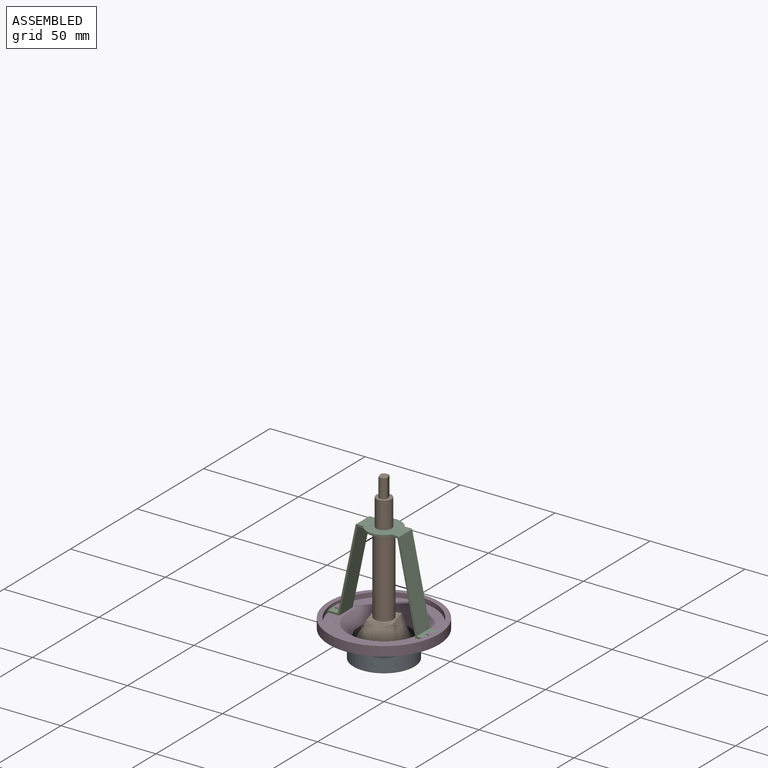
[diagram: assembled view]
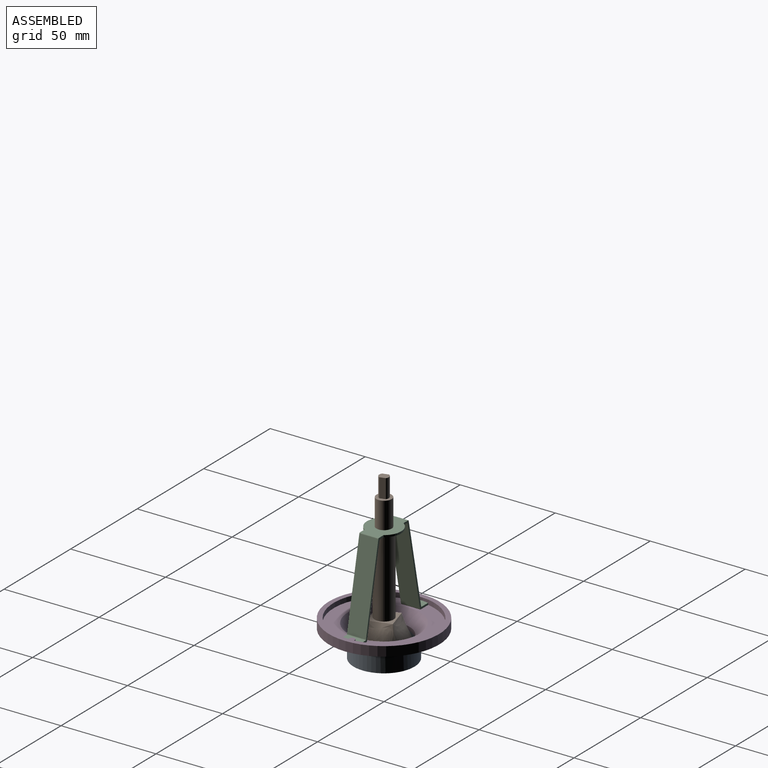
[diagram: assembled view, second angle]
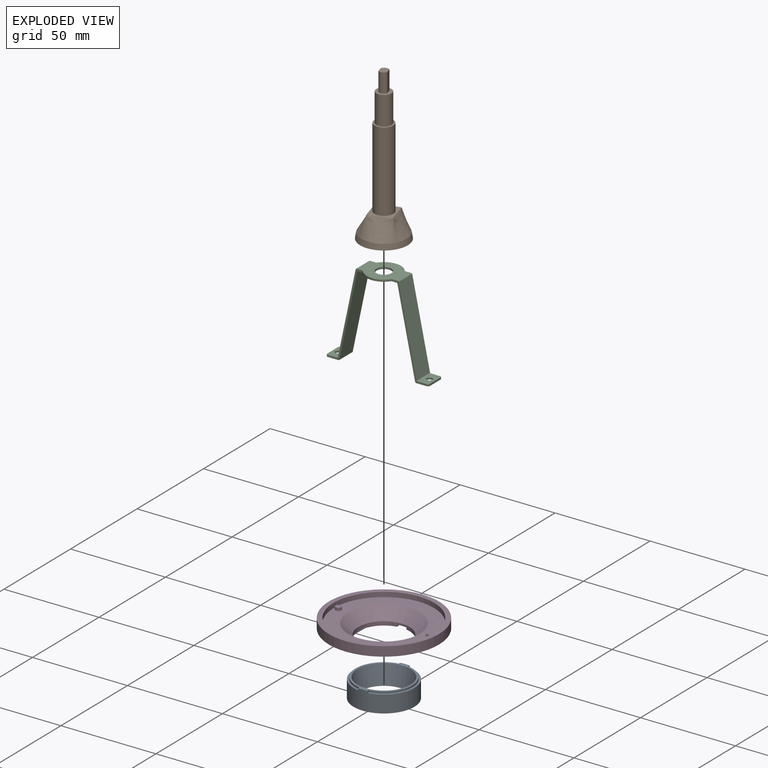
[diagram: exploded view]
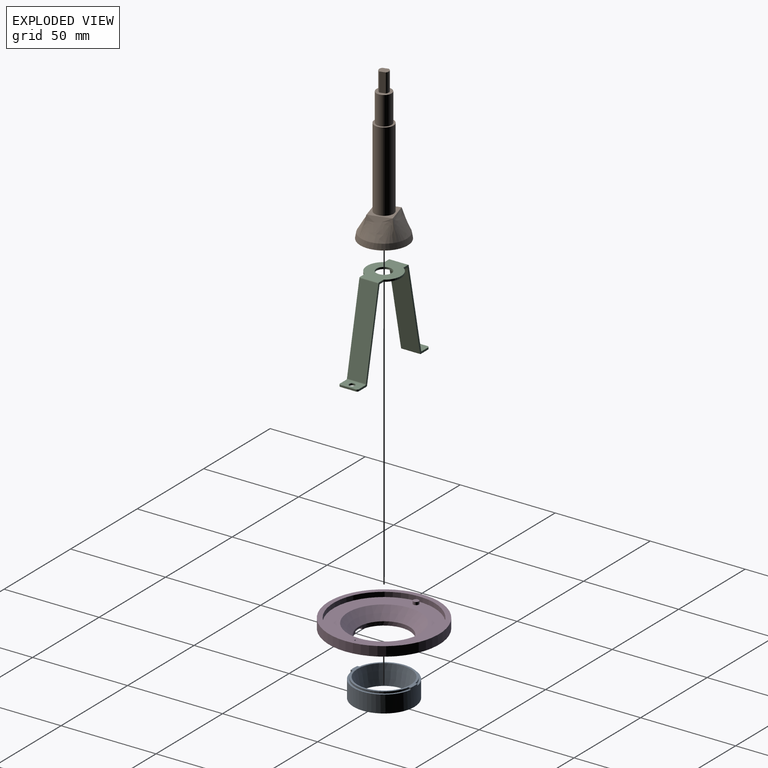
[diagram: exploded view, second angle]
ASSEMBLY  parts=4 mates=8
PART A: 12 faces, bbox 32x32x10 mm
  f0: cylinder r=15mm len=29.58mm, axis (0,0,1), area 42.1mm2, adj f1,f6,f7,f10
  f1: plane 31.61x13.5mm, normal (0,0,1), area 43.7mm2, adj f0,f2,f7,f10
  f2: cylinder r=16mm len=32mm, axis (0,0,-1), area 914.8mm2, adj f1,f3,f5,f6,f7,f8,f9,f10
  f3: plane 32x32mm, normal (0,0,-1), area 333.8mm2, adj f2,f11
  f4: cylinder r=15mm len=29.58mm, axis (0,0,1), area 42.1mm2, adj f5,f6,f8,f9
  f5: plane 31.61x13.5mm, normal (0,0,1), area 43.7mm2, adj f2,f4,f8,f9
  f6: plane 32x30mm, normal (0,0,1), area 101.2mm2, adj f0,f2,f4,f7,f8,f9,f10,f11
  f7: plane 1.01x1mm, normal (1,0,0), area 1mm2, adj f0,f1,f2,f6
  f8: plane 1.01x1mm, normal (-1,0,0), area 1mm2, adj f2,f4,f5,f6
  f9: plane 1.01x1mm, normal (-1,0,0), area 1mm2, adj f2,f4,f5,f6
  f10: plane 1.01x1mm, normal (1,0,0), area 1mm2, adj f0,f1,f2,f6
  f11: cone r=14mm half-angle=10deg, axis (0,0,1), area 837mm2, adj f3,f6
PART B: 16 faces, bbox 25.1x25.1x80 mm
  f0: cylinder r=5mm len=42mm, axis (0,0,-1), area 1319.5mm2, adj f2,f9
  f1: cylinder r=4mm len=15mm, axis (0,0,1), area 377mm2, adj f2,f7
  f2: plane 10x10mm, normal (0,0,1), area 28.3mm2, adj f0,f1
  f3: cylinder r=2.5mm len=10mm, axis (0,0,1), area 46.4mm2, adj f4,f6,f7,f8
  f4: plane 10x3mm, normal (0,-1,0), area 30mm2, adj f3,f5,f7,f8
  f5: cylinder r=2.5mm len=10mm, axis (0,0,1), area 46.4mm2, adj f4,f6,f7,f8
  f6: plane 10x3mm, normal (0,1,0), area 30mm2, adj f3,f5,f7,f8
  f7: plane 8x8mm, normal (0,0,1), area 32.7mm2, adj f1,f3,f4,f5,f6
  f8: plane 5x4mm, normal (0,0,1), area 17.6mm2, adj f3,f4,f5,f6
  f9: plane 12x12mm, normal (0,0,1), area 65.5mm2, adj f0,f10,f11,f12,f13
  f10: bspline ~16.97x10mm, area 170.6mm2, adj f9,f11,f13,f15
  f11: bspline ~16.97x10mm, area 170.6mm2, adj f9,f10,f12,f15
  f12: bspline ~16.97x10mm, area 170.6mm2, adj f9,f11,f13,f15
  f13: bspline ~16.97x10mm, area 170.6mm2, adj f9,f10,f12,f15
  f14: plane 25.06x25.06mm, normal (0,0,-1), area 493.2mm2, adj f15
  f15: cone r=12mm half-angle=10deg, axis (0,0,-1), area 234.7mm2, adj f10,f11,f12,f13,f14
PART C: 33 faces, bbox 54x18x46 mm
  f0: plane 46x18.52mm, normal (0,-1,0), area 55mm2, adj f2,f8,f9,f10,f12,f13,f18,f19
  f1: plane 46x18.52mm, normal (0,1,0), area 55mm2, adj f2,f8,f9,f10,f12,f13,f18,f19
  f2: plane 21.81x18mm, normal (0,0,1), area 252.1mm2, adj f0,f1,f14,f15,f16,f19,f24,f25
  f3: plane 44.21x10mm, normal (-0.98,0,0.21), area 451.8mm2, adj f14,f15,f16,f17
  f4: plane 10x5.78mm, normal (0,0,1), area 50.3mm2, adj f5,f14,f15,f17,f28,f30,f32
  f5: plane 8x1mm, normal (-1,0,0), area 8mm2, adj f4,f6,f30,f32
  f6: plane 10x6.59mm, normal (0,0,-1), area 58.4mm2, adj f5,f14,f15,f20,f28,f30,f32
  f7: plane 44.21x10mm, normal (0.98,0,-0.21), area 451.8mm2, adj f14,f15,f20,f21
  f8: plane 20.19x18mm, normal (0,0,-1), area 235.8mm2, adj f0,f1,f14,f15,f21,f22,f24,f25
  f9: plane 44.21x10mm, normal (-0.98,0,-0.21), area 451.8mm2, adj f0,f1,f22,f23
  f10: plane 10x6.59mm, normal (0,0,-1), area 58.4mm2, adj f0,f1,f11,f23,f27,f29,f31
  f11: plane 8x1mm, normal (1,0,0), area 8mm2, adj f10,f12,f29,f31
  f12: plane 10x5.78mm, normal (0,0,1), area 50.3mm2, adj f0,f1,f11,f18,f27,f29,f31
  f13: plane 44.21x10mm, normal (0.98,0,0.21), area 451.8mm2, adj f0,f1,f18,f19
  f14: plane 46x18.52mm, normal (0,-1,0), area 55mm2, adj f2,f3,f4,f6,f7,f8,f16,f17
  f15: plane 46x18.52mm, normal (0,1,0), area 55mm2, adj f2,f3,f4,f6,f7,f8,f16,f17
  f16: cylinder r=0.5mm len=10mm, axis (0,-1,0), area 6.8mm2, adj f2,f3,f14,f15
  f17: cylinder r=0.5mm len=10mm, axis (0,-1,0), area 6.8mm2, adj f3,f4,f14,f15
  f18: cylinder r=0.5mm len=10mm, axis (0,-1,0), area 6.8mm2, adj f0,f1,f12,f13
  f19: cylinder r=0.5mm len=10mm, axis (0,1,0), area 6.8mm2, adj f0,f1,f2,f13
  f20: cylinder r=0.5mm len=10mm, axis (0,1,0), area 6.8mm2, adj f6,f7,f14,f15
  f21: cylinder r=0.5mm len=10mm, axis (0,1,0), area 6.8mm2, adj f7,f8,f14,f15
  f22: cylinder r=0.5mm len=10mm, axis (0,-1,0), area 6.8mm2, adj f0,f1,f8,f9
  f23: cylinder r=0.5mm len=10mm, axis (0,1,0), area 6.8mm2, adj f0,f1,f9,f10
  f24: cylinder r=9mm len=14.97mm, axis (0,0,1), area 17.7mm2, adj f1,f2,f8,f15
  f25: cylinder r=9mm len=14.97mm, axis (0,0,1), area 17.7mm2, adj f0,f2,f8,f14
  f26: cylinder r=4mm len=8mm, axis (0,0,1), area 25.1mm2, adj f2,f8
  f27: cylinder r=1.5mm len=3mm, axis (0,0,-1), area 9.4mm2, adj f10,f12
  f28: cylinder r=1.5mm len=3mm, axis (0,0,-1), area 9.4mm2, adj f4,f6
  f29: cylinder r=1mm len=1mm, axis (0,0,1), area 1.6mm2, adj f1,f10,f11,f12
  f30: cylinder r=1mm len=1mm, axis (0,0,-1), area 1.6mm2, adj f4,f5,f6,f15
  f31: cylinder r=1mm len=1mm, axis (0,0,-1), area 1.6mm2, adj f0,f10,f11,f12
  f32: cylinder r=1mm len=1mm, axis (0,0,1), area 1.6mm2, adj f4,f5,f6,f14
PART D: 22 faces, bbox 58x58x10 mm
  f0: cylinder r=16mm len=31.61mm, axis (0,0,1), area 45.2mm2, adj f1,f8,f16,f20
  f1: plane 31.61x13.5mm, normal (0,0,-1), area 103.3mm2, adj f0,f2,f16,f20
  f2: cylinder r=13.5mm len=27mm, axis (0,0,1), area 162.6mm2, adj f1,f7,f11,f16,f17,f18,f19,f20
  f3: cylinder r=29mm len=58mm, axis (0,0,-1), area 911.1mm2, adj f4,f5
  f4: plane 58x58mm, normal (0,0,1), area 435.9mm2, adj f3,f9
  f5: plane 58x58mm, normal (0,0,-1), area 1385.4mm2, adj f3,f8
  f6: cylinder r=16mm len=31.61mm, axis (0,0,1), area 45.2mm2, adj f7,f8,f17,f21
  f7: plane 31.61x13.5mm, normal (0,0,-1), area 103.3mm2, adj f2,f6,f17,f21
  f8: cone r=20mm half-angle=45deg, axis (0,0,1), area 639.8mm2, adj f0,f5,f6,f18,f19
  f9: cylinder r=26.5mm len=53mm, axis (0,0,-1), area 416.3mm2, adj f4,f10
  f10: plane 53x53mm, normal (0,0,1), area 1062.2mm2, adj f9,f11,f12,f14
  f11: cone r=18.23mm half-angle=45deg, axis (0,0,1), area 788.2mm2, adj f2,f10
  f12: cylinder r=1.5mm len=3mm, axis (0,0,-1), area 14.1mm2, adj f10,f13
  f13: plane 3x3mm, normal (0,0,1), area 7.1mm2, adj f12
  f14: cylinder r=1.5mm len=3mm, axis (0,0,-1), area 14.1mm2, adj f10,f15
  f15: plane 3x3mm, normal (0,0,1), area 7.1mm2, adj f14
  f16: plane 2.54x1mm, normal (1,0,0), area 2.5mm2, adj f0,f1,f2,f18
  f17: plane 2.54x1mm, normal (-1,0,0), area 2.5mm2, adj f2,f6,f7,f18
  f18: plane 5x2.73mm, normal (0,0,-1), area 12.6mm2, adj f2,f8,f16,f17
  f19: plane 5x2.73mm, normal (0,0,-1), area 12.6mm2, adj f2,f8,f20,f21
  f20: plane 2.54x1mm, normal (1,0,0), area 2.5mm2, adj f0,f1,f2,f19
  f21: plane 2.54x1mm, normal (-1,0,0), area 2.5mm2, adj f2,f6,f7,f19
PLACE A t=(0,0,12.08)mm
PLACE B rot(axis=(0,0,1),106.4deg) t=(0,0,18.58)mm
PLACE C rot(axis=(0,0,1),0deg) t=(0,0,28.58)mm
PLACE D t=(0,0,26.08)mm fixed
MATE cylindrical D.f12 <-> C.f28  axis (0,0,-1) through (-24,0,28.58)mm
MATE planar C.f27 <-> D.f14  axis (0,0,-1) through (24,0,28.58)mm
MATE cylindrical D.f14 <-> C.f27  axis (0,0,-1) through (24,0,28.58)mm
MATE cylindrical A.f0 <-> D.f0  axis (0,0,-1) through (0,0,17.08)mm
MATE planar A.f7 <-> D.f17  axis (1,0,0) through (2.5,-15.3,21.58)mm
MATE cylindrical B.f0 <-> C.f24  axis (0,0,-1) through (0,0,52.58)mm
MATE planar B.f0 <-> C.f26  axis (0,0,1) through (0,0,73.58)mm
MATE planar A.f0 <-> D.f19  axis (0,0,1) through (0,0,22.08)mm
